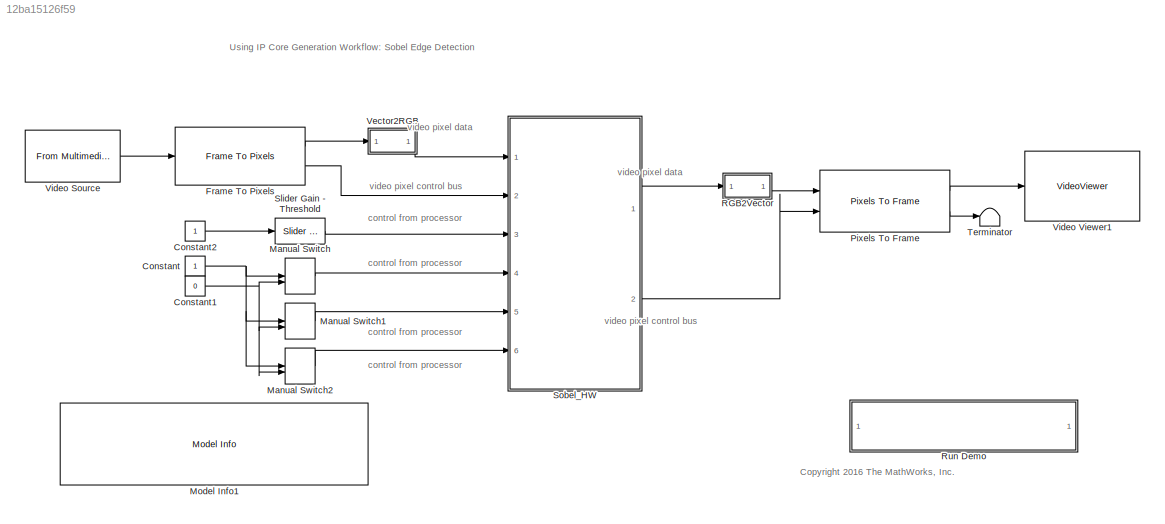
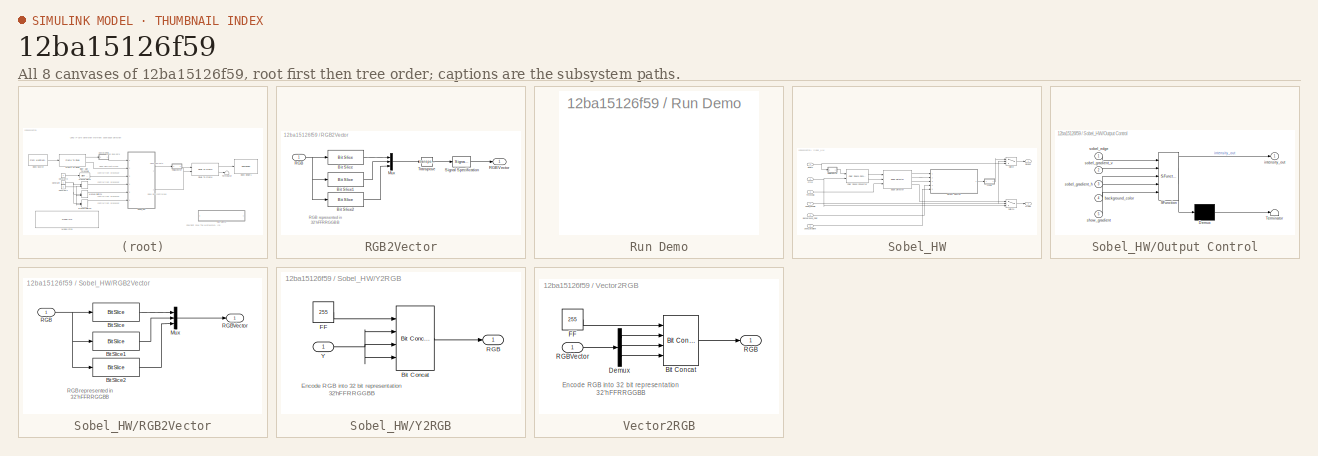
[diagram: thumbnail index - all 8 canvases of the model, root first then tree order]
MODEL slx_12ba15126f59
KIND model
CONFIG AbsTol = auto
CONFIG EnableMultiTasking = off
CONFIG FixedStep = auto
CONFIG InitFcn = Ts = 1e-3;\nTs_240p = 402*324*Ts;\n\n
CONFIG MaxStep = auto
CONFIG MinStep = auto
CONFIG RelTol = 1e-3
CONFIG SampleTimeConstraint = Unconstrained
CONFIG Solver = FixedStepDiscrete
CONFIG SolverName = FixedStepDiscrete
CONFIG StartTime = 0.0
CONFIG StopTime = Ts_240p*5
BLOCK [Constant] Constant
  OutDataTypeStr = boolean
  SampleTime = Ts
BLOCK [Constant] Constant1
  OutDataTypeStr = boolean
  SampleTime = Ts
  Value = 0
BLOCK [Constant] Constant2
  OutDataTypeStr = uint8
  SampleTime = Ts
BLOCK [Reference] Frame To Pixels  REF=visionhdlio/Frame To Pixels
  Ports = [1, 2]
  SourceBlock = visionhdlio/Frame To Pixels
  SourceProductBaseCode = VT
  SourceProductName = Vision HDL Toolbox
  SourceType = Frame To Pixels
BLOCK [ManualSwitch] Manual Switch
BLOCK [ManualSwitch] Manual Switch1
BLOCK [ManualSwitch] Manual Switch2
  CurrentSetting = 0
BLOCK [Reference] Model Info1  REF=simulink/Model-Wide
Utilities/Model Info
  Ports = []
  SourceBlock = simulink/Model-Wide\nUtilities/Model Info
  SourceProductBaseCode = SL
  SourceProductName = Simulink
  SourceType = CMBlock
BLOCK [Reference] Pixels To Frame  REF=visionhdlio/Pixels To Frame
  Ports = [2, 2]
  SourceBlock = visionhdlio/Pixels To Frame
  SourceProductBaseCode = VT
  SourceProductName = Vision HDL Toolbox
  SourceType = Pixels To Frame
BLOCK [SubSystem] RGB2Vector
  Ports = [1, 1]
  RequestExecContextInheritance = off
  ShowPortLabels = none
  Variant = off
BLOCK [Reference] RGB2Vector/Bit Slice  REF=hdlsllib/HDL Operations/Bit Slice
  Ports = [1, 1]
  SourceBlock = hdlsllib/HDL Operations/Bit Slice
  SourceProductBaseCode = HD
  SourceProductName = HDL Coder
  SourceType = Bit Slice
BLOCK [Reference] RGB2Vector/Bit Slice1  REF=hdlsllib/HDL Operations/Bit Slice
  Ports = [1, 1]
  SourceBlock = hdlsllib/HDL Operations/Bit Slice
  SourceProductBaseCode = HD
  SourceProductName = HDL Coder
  SourceType = Bit Slice
BLOCK [Reference] RGB2Vector/Bit Slice2  REF=hdlsllib/HDL Operations/Bit Slice
  Ports = [1, 1]
  SourceBlock = hdlsllib/HDL Operations/Bit Slice
  SourceProductBaseCode = HD
  SourceProductName = HDL Coder
  SourceType = Bit Slice
BLOCK [Mux] RGB2Vector/Mux
  DisplayOption = bar
  Inputs = 3
  Ports = [3, 1]
BLOCK [Inport] RGB2Vector/RGB
  IconDisplay = Port number
BLOCK [Outport] RGB2Vector/RGBVector
  IconDisplay = Port number
BLOCK [SignalSpecification] RGB2Vector/Signal Specification
  SignalType = real
BLOCK [Math] RGB2Vector/Transpose
  Operator = transpose
  Ports = [1, 1]
BLOCK [SubSystem] Run Demo
  OpenFcn = hdladvisor([bdroot, '/Sobel_HW'])
  Ports = []
  RequestExecContextInheritance = off
  Variant = off
BLOCK [Reference] Slider Gain - Threshold  REF=simulink/Math
Operations/Slider
Gain
  Ports = [1, 1]
  SourceBlock = simulink/Math\nOperations/Slider\nGain
  SourceProductBaseCode = SL
  SourceProductName = Simulink
  SourceType = Slider Gain
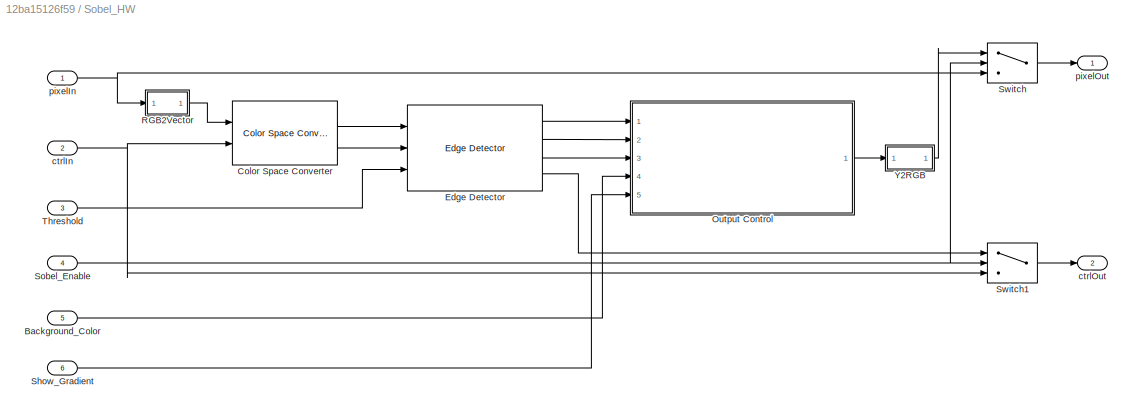
BLOCK [SubSystem] Sobel_HW
  Ports = [6, 2]
  RequestExecContextInheritance = off
  TreatAsAtomicUnit = on
  Variant = off
BLOCK [Inport] Sobel_HW/Background_Color
  IconDisplay = Port number
  Port = 5
BLOCK [Reference] Sobel_HW/Color Space Converter  REF=visionhdlconversions/Color Space Converter
  Ports = [2, 2]
  SourceBlock = visionhdlconversions/Color Space Converter
  SourceProductBaseCode = VT
  SourceProductName = Vision HDL Toolbox
  SourceType = Color Space Converter
BLOCK [Reference] Sobel_HW/Edge Detector  REF=visionhdlanalysis/Edge Detector
  Ports = [3, 4]
  SourceBlock = visionhdlanalysis/Edge Detector
  SourceProductBaseCode = VT
  SourceProductName = Vision HDL Toolbox
  SourceType = Edge Detector
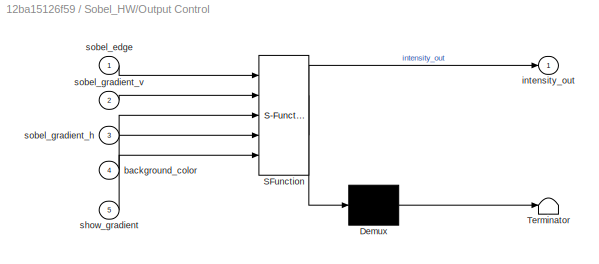
BLOCK [SubSystem] Sobel_HW/Output Control
  ErrorFcn = Stateflow.Translate.translate
  PermitHierarchicalResolution = ExplicitOnly
  Ports = [5, 1]
  RequestExecContextInheritance = off
  SFBlockType = MATLAB Function
  TreatAsAtomicUnit = on
  Variant = off
BLOCK [Demux] Sobel_HW/Output Control/ Demux 
  Outputs = 1
  Ports = [1, 1]
BLOCK [S-Function] Sobel_HW/Output Control/ SFunction 
  EnableBusSupport = off
  FunctionName = sf_sfun
  PortCounts = [5 2]
  Ports = [5, 2]
  SFcnIsStateOwnerBlock = off
  SFunctionDeploymentMode = off
  Tag = Stateflow S-Function hdlcoder_sobel_video_stream 3
BLOCK [Terminator] Sobel_HW/Output Control/ Terminator 
BLOCK [Inport] Sobel_HW/Output Control/background_color
  IconDisplay = Port number
  Port = 4
BLOCK [Outport] Sobel_HW/Output Control/intensity_out
  IconDisplay = Port number
BLOCK [Inport] Sobel_HW/Output Control/show_gradient
  IconDisplay = Port number
  Port = 5
BLOCK [Inport] Sobel_HW/Output Control/sobel_edge
  IconDisplay = Port number
BLOCK [Inport] Sobel_HW/Output Control/sobel_gradient_h
  IconDisplay = Port number
  Port = 3
BLOCK [Inport] Sobel_HW/Output Control/sobel_gradient_v
  IconDisplay = Port number
  Port = 2
BLOCK [SubSystem] Sobel_HW/RGB2Vector
  Ports = [1, 1]
  RequestExecContextInheritance = off
  ShowPortLabels = none
  Variant = off
BLOCK [Reference] Sobel_HW/RGB2Vector/Bit Slice  REF=hdlsllib/HDL Operations/Bit Slice
  Ports = [1, 1]
  SourceBlock = hdlsllib/HDL Operations/Bit Slice
  SourceProductBaseCode = HD
  SourceProductName = HDL Coder
  SourceType = Bit Slice
BLOCK [Reference] Sobel_HW/RGB2Vector/Bit Slice1  REF=hdlsllib/HDL Operations/Bit Slice
  Ports = [1, 1]
  SourceBlock = hdlsllib/HDL Operations/Bit Slice
  SourceProductBaseCode = HD
  SourceProductName = HDL Coder
  SourceType = Bit Slice
BLOCK [Reference] Sobel_HW/RGB2Vector/Bit Slice2  REF=hdlsllib/HDL Operations/Bit Slice
  Ports = [1, 1]
  SourceBlock = hdlsllib/HDL Operations/Bit Slice
  SourceProductBaseCode = HD
  SourceProductName = HDL Coder
  SourceType = Bit Slice
BLOCK [Mux] Sobel_HW/RGB2Vector/Mux
  DisplayOption = bar
  Inputs = 3
  Ports = [3, 1]
BLOCK [Inport] Sobel_HW/RGB2Vector/RGB
  IconDisplay = Port number
BLOCK [Outport] Sobel_HW/RGB2Vector/RGBVector
  IconDisplay = Port number
BLOCK [Inport] Sobel_HW/Show_Gradient
  IconDisplay = Port number
  Port = 6
BLOCK [Inport] Sobel_HW/Sobel_Enable
  IconDisplay = Port number
  Port = 4
BLOCK [Switch] Sobel_HW/Switch
  Criteria = u2 ~= 0
  InputSameDT = off
  SaturateOnIntegerOverflow = off
BLOCK [Switch] Sobel_HW/Switch1
  Criteria = u2 ~= 0
  InputSameDT = off
  SaturateOnIntegerOverflow = off
BLOCK [Inport] Sobel_HW/Threshold
  IconDisplay = Port number
  Port = 3
BLOCK [SubSystem] Sobel_HW/Y2RGB
  Ports = [1, 1]
  RequestExecContextInheritance = off
  ShowPortLabels = none
  Variant = off
BLOCK [Reference] Sobel_HW/Y2RGB/Bit Concat  REF=hdlsllib/HDL Operations/Bit Concat
  Ports = [4, 1]
  SourceBlock = hdlsllib/HDL Operations/Bit Concat
  SourceProductBaseCode = HD
  SourceProductName = HDL Coder
  SourceType = Bit Concat
BLOCK [Constant] Sobel_HW/Y2RGB/FF
  OutDataTypeStr = uint8
  SampleTime = Ts
  Value = 255
BLOCK [Outport] Sobel_HW/Y2RGB/RGB
  IconDisplay = Port number
BLOCK [Inport] Sobel_HW/Y2RGB/Y
  IconDisplay = Port number
BLOCK [Inport] Sobel_HW/ctrlIn
  IconDisplay = Port number
  Port = 2
BLOCK [Outport] Sobel_HW/ctrlOut
  IconDisplay = Port number
  Port = 2
BLOCK [Inport] Sobel_HW/pixelIn
  IconDisplay = Port number
BLOCK [Outport] Sobel_HW/pixelOut
  IconDisplay = Port number
BLOCK [Terminator] Terminator
BLOCK [SubSystem] Vector2RGB
  Ports = [1, 1]
  RequestExecContextInheritance = off
  ShowPortLabels = none
  Variant = off
BLOCK [Reference] Vector2RGB/Bit Concat  REF=hdlsllib/HDL Operations/Bit Concat
  Ports = [4, 1]
  SourceBlock = hdlsllib/HDL Operations/Bit Concat
  SourceProductBaseCode = HD
  SourceProductName = HDL Coder
  SourceType = Bit Concat
BLOCK [Demux] Vector2RGB/Demux
  DisplayOption = bar
  Outputs = 3
  Ports = [1, 3]
BLOCK [Constant] Vector2RGB/FF
  OutDataTypeStr = uint8
  SampleTime = Ts
  Value = 255
BLOCK [Outport] Vector2RGB/RGB
  IconDisplay = Port number
BLOCK [Inport] Vector2RGB/RGBVector
  IconDisplay = Port number
BLOCK [Reference] Video Source  REF=dspvision/From Multimedia File
  Ports = [0, 1]
  SourceBlock = dspvision/From Multimedia File
  SourceProductBaseCode = VP
  SourceProductName = Computer Vision System Toolbox
  SourceType = From Multimedia File
BLOCK [VideoViewer] Video Viewer1
  FigPos = [1477 563 410 300]
  Ports = [1]
  ScopeSpecificationString = vipscopes.VideoViewerScopeCfg('CurrentConfiguration', extmgr.ConfigurationSet(extmgr.Configuration('Core','General UI',true),extmgr.Configuration('Core','Source UI',true),extmgr.Configuration('Sources','WiredSimulink',true),extmgr.Configuration('Sources','Streaming',false),extmgr.Configuration('Sources','SimulinkEvent',false),extmgr.Configuration('Sources','Workspace',false),extmgr.Configuration('...<+1243ch>
ANNOTATION (root): <copyright redacted>
ANNOTATION (root): Using IP Core Generation Workflow: Sobel Edge Detection
ANNOTATION (root): control from processor
ANNOTATION (root): video pixel control bus
ANNOTATION (root): video pixel data
ANNOTATION RGB2Vector: RGB represented in 32'hFFRRGGBB
ANNOTATION Sobel_HW/RGB2Vector: RGB represented in 32'hFFRRGGBB
ANNOTATION Sobel_HW/Y2RGB: Encode RGB into 32 bit representation 32'hFFRRGGBB
ANNOTATION Vector2RGB: Encode RGB into 32 bit representation 32'hFFRRGGBB
NET Constant1:1 -> Manual Switch1:2, Manual Switch2:2, Manual Switch:2
LINE Constant2:1 -> Slider Gain - Threshold:1
NET Constant:1 -> Manual Switch1:1, Manual Switch2:1, Manual Switch:1
LINE Frame To Pixels:1 -> Vector2RGB:1
LINE Frame To Pixels:2 -> Sobel_HW:2
LINE Manual Switch1:1 -> Sobel_HW:5
LINE Manual Switch2:1 -> Sobel_HW:6
LINE Manual Switch:1 -> Sobel_HW:4
LINE Pixels To Frame:1 -> Video Viewer1:1
LINE Pixels To Frame:2 -> Terminator:1
LINE RGB2Vector/Bit Slice1:1 -> RGB2Vector/Mux:2
LINE RGB2Vector/Bit Slice2:1 -> RGB2Vector/Mux:3
LINE RGB2Vector/Bit Slice:1 -> RGB2Vector/Mux:1
LINE RGB2Vector/Mux:1 -> RGB2Vector/Transpose:1
NET RGB2Vector/RGB:1 -> RGB2Vector/Bit Slice1:1, RGB2Vector/Bit Slice2:1, RGB2Vector/Bit Slice:1
LINE RGB2Vector/Signal Specification:1 -> RGB2Vector/RGBVector:1
LINE RGB2Vector/Transpose:1 -> RGB2Vector/Signal Specification:1
LINE RGB2Vector:1 -> Pixels To Frame:1
LINE Slider Gain - Threshold:1 -> Sobel_HW:3
LINE Sobel_HW/Background_Color:1 -> Sobel_HW/Output Control:4
LINE Sobel_HW/Color Space Converter:1 -> Sobel_HW/Edge Detector:1
LINE Sobel_HW/Color Space Converter:2 -> Sobel_HW/Edge Detector:2
LINE Sobel_HW/Edge Detector:1 -> Sobel_HW/Output Control:1
LINE Sobel_HW/Edge Detector:2 -> Sobel_HW/Output Control:2
LINE Sobel_HW/Edge Detector:3 -> Sobel_HW/Output Control:3
LINE Sobel_HW/Edge Detector:4 -> Sobel_HW/Switch1:1
LINE Sobel_HW/Output Control:1 -> Sobel_HW/Y2RGB:1
LINE Sobel_HW/RGB2Vector/Bit Slice1:1 -> Sobel_HW/RGB2Vector/Mux:2
LINE Sobel_HW/RGB2Vector/Bit Slice2:1 -> Sobel_HW/RGB2Vector/Mux:3
LINE Sobel_HW/RGB2Vector/Bit Slice:1 -> Sobel_HW/RGB2Vector/Mux:1
LINE Sobel_HW/RGB2Vector/Mux:1 -> Sobel_HW/RGB2Vector/RGBVector:1
NET Sobel_HW/RGB2Vector/RGB:1 -> Sobel_HW/RGB2Vector/Bit Slice1:1, Sobel_HW/RGB2Vector/Bit Slice2:1, Sobel_HW/RGB2Vector/Bit Slice:1
LINE Sobel_HW/RGB2Vector:1 -> Sobel_HW/Color Space Converter:1
LINE Sobel_HW/Show_Gradient:1 -> Sobel_HW/Output Control:5
NET Sobel_HW/Sobel_Enable:1 -> Sobel_HW/Switch1:2, Sobel_HW/Switch:2
LINE Sobel_HW/Switch1:1 -> Sobel_HW/ctrlOut:1
LINE Sobel_HW/Switch:1 -> Sobel_HW/pixelOut:1
LINE Sobel_HW/Threshold:1 -> Sobel_HW/Edge Detector:3
LINE Sobel_HW/Y2RGB/Bit Concat:1 -> Sobel_HW/Y2RGB/RGB:1
LINE Sobel_HW/Y2RGB/FF:1 -> Sobel_HW/Y2RGB/Bit Concat:1
NET Sobel_HW/Y2RGB/Y:1 -> Sobel_HW/Y2RGB/Bit Concat:2, Sobel_HW/Y2RGB/Bit Concat:3, Sobel_HW/Y2RGB/Bit Concat:4
LINE Sobel_HW/Y2RGB:1 -> Sobel_HW/Switch:1
NET Sobel_HW/ctrlIn:1 -> Sobel_HW/Color Space Converter:2, Sobel_HW/Switch1:3
NET Sobel_HW/pixelIn:1 -> Sobel_HW/RGB2Vector:1, Sobel_HW/Switch:3
LINE Sobel_HW:1 -> RGB2Vector:1
LINE Sobel_HW:2 -> Pixels To Frame:2
LINE Vector2RGB/Bit Concat:1 -> Vector2RGB/RGB:1
LINE Vector2RGB/Demux:1 -> Vector2RGB/Bit Concat:2
LINE Vector2RGB/Demux:2 -> Vector2RGB/Bit Concat:3
LINE Vector2RGB/Demux:3 -> Vector2RGB/Bit Concat:4
LINE Vector2RGB/FF:1 -> Vector2RGB/Bit Concat:1
LINE Vector2RGB/RGBVector:1 -> Vector2RGB/Demux:1
LINE Vector2RGB:1 -> Sobel_HW:1
LINE Video Source:1 -> Frame To Pixels:1
note: NET lines group one-source signal fan-out (src -> all destinations, sorted); 1:1 wires keep LINE
CHART Sobel_HW/Output Control states=1 transitions=1
  STATE_LABEL 'eML_blk_kernel()'
  STATE_LABEL 'SCRIPT:\nfunction intensity_out = OutputControl(sobel_edge, sobel_gradient_v, sobel_gradient_h, background_color, show_gradient)\n% display image based on the control ports\n\nblack = fi(0, 0, 8, 0);\nwhite = fi(255, 0, 8, 0);\n\nif show_gradient\n    intensity_out = fi(sobel_gradient_v*sobel_gradient_v + sobel_gradient_h*sobel_gradient_h, 0, 8, 0);\nelse\n    if background_color\n        % background_color ...<+332ch>'
